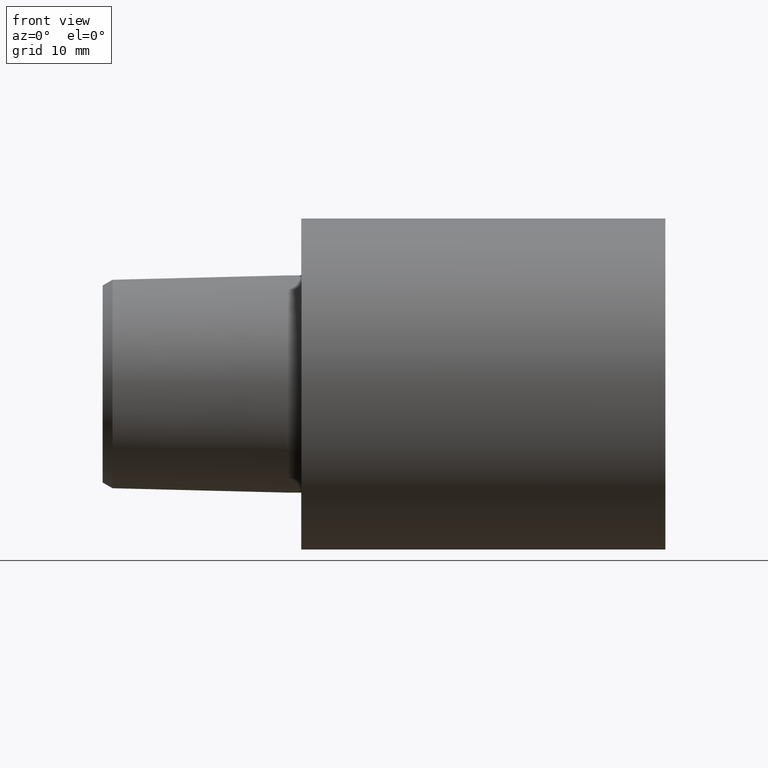
[diagram: clean part render]
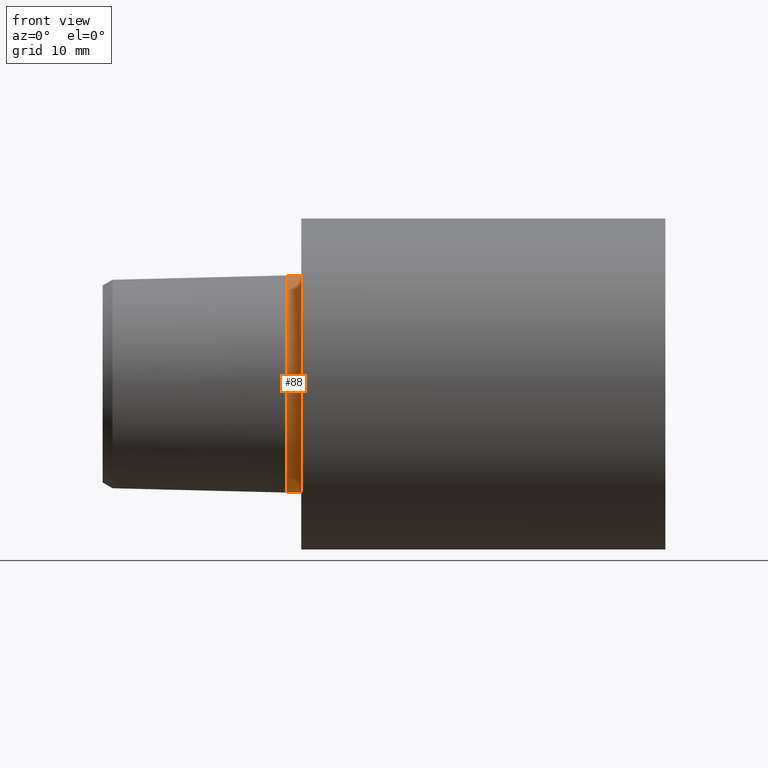
[diagram: same view with one face highlighted and labeled with its STEP entity id]
A machine part, front view. The second image highlights one B-rep face of the part: STEP entity #88.
In plain terms, the highlighted cylindrical surface (partial cylindrical patch) has radius 16.4 mm, axis along (1, 0, 0).
Its self-contained STEP definition (entity closure, byte-faithful):
#14 = VECTOR ( 'NONE', #110, 1000.000000000000000 ) ;
#19 = DIRECTION ( 'NONE',  ( 0.000000000000000000, 0.000000000000000000, -1.000000000000000000 ) ) ;
#29 = CYLINDRICAL_SURFACE ( 'NONE', #262, 16.40000330327199762 ) ;
#39 = VECTOR ( 'NONE', #252, 1000.000000000000000 ) ;
#45 = ORIENTED_EDGE ( 'NONE', *, *, #201, .F. ) ;
#46 = DIRECTION ( 'NONE',  ( 1.000000000000000000, 0.000000000000000000, 0.000000000000000000 ) ) ;
#57 = VERTEX_POINT ( 'NONE', #151 ) ;
#65 = DIRECTION ( 'NONE',  ( 0.000000000000000000, 0.000000000000000000, -1.000000000000000000 ) ) ;
#70 = CARTESIAN_POINT ( 'NONE',  ( -2.199937517756059613, 0.000000000000000000, -16.40000330327199762 ) ) ;
#88 = ADVANCED_FACE ( 'NONE', ( #186 ), #29, .T. ) ;
#110 = DIRECTION ( 'NONE',  ( 1.000000000000000000, 0.000000000000000000, 0.000000000000000000 ) ) ;
#111 = EDGE_CURVE ( 'NONE', #245, #160, #188, .T. ) ;
#122 = CARTESIAN_POINT ( 'NONE',  ( 0.000000000000000000, 0.000000000000000000, 0.000000000000000000 ) ) ;
#135 = CIRCLE ( 'NONE', #180, 16.40000330327199762 ) ;
#141 = CARTESIAN_POINT ( 'NONE',  ( 0.000000000000000000, 0.000000000000000000, -16.40000330327199762 ) ) ;
#144 = ORIENTED_EDGE ( 'NONE', *, *, #163, .T. ) ;
#146 = CARTESIAN_POINT ( 'NONE',  ( -2.199937517756059613, 0.000000000000000000, 0.000000000000000000 ) ) ;
#151 = CARTESIAN_POINT ( 'NONE',  ( 0.000000000000000000, 2.008421155135807723E-15, 16.40000330327199762 ) ) ;
#160 = VERTEX_POINT ( 'NONE', #141 ) ;
#163 = EDGE_CURVE ( 'NONE', #210, #245, #335, .T. ) ;
#177 = DIRECTION ( 'NONE',  ( 1.000000000000000000, 0.000000000000000000, 0.000000000000000000 ) ) ;
#180 = AXIS2_PLACEMENT_3D ( 'NONE', #122, #46, #65 ) ;
#181 = ORIENTED_EDGE ( 'NONE', *, *, #111, .T. ) ;
#184 = EDGE_LOOP ( 'NONE', ( #45, #144, #181, #347 ) ) ;
#186 = FACE_OUTER_BOUND ( 'NONE', #184, .T. ) ;
#188 = LINE ( 'NONE', #274, #14 ) ;
#195 = LINE ( 'NONE', #255, #39 ) ;
#201 = EDGE_CURVE ( 'NONE', #210, #57, #195, .T. ) ;
#210 = VERTEX_POINT ( 'NONE', #288 ) ;
#212 = DIRECTION ( 'NONE',  ( 1.000000000000000000, 0.000000000000000000, 0.000000000000000000 ) ) ;
#217 = AXIS2_PLACEMENT_3D ( 'NONE', #146, #177, #19 ) ;
#218 = EDGE_CURVE ( 'NONE', #57, #160, #135, .T. ) ;
#243 = CARTESIAN_POINT ( 'NONE',  ( 54.99999994390000069, 0.000000000000000000, 0.000000000000000000 ) ) ;
#245 = VERTEX_POINT ( 'NONE', #70 ) ;
#252 = DIRECTION ( 'NONE',  ( 1.000000000000000000, 0.000000000000000000, 0.000000000000000000 ) ) ;
#255 = CARTESIAN_POINT ( 'NONE',  ( 54.99999994390000069, 2.008421155135807723E-15, 16.40000330327199762 ) ) ;
#262 = AXIS2_PLACEMENT_3D ( 'NONE', #243, #212, #327 ) ;
#274 = CARTESIAN_POINT ( 'NONE',  ( 54.99999994390000069, 0.000000000000000000, -16.40000330327199762 ) ) ;
#288 = CARTESIAN_POINT ( 'NONE',  ( -2.199937517756059613, 2.008421155135807723E-15, 16.40000330327199762 ) ) ;
#327 = DIRECTION ( 'NONE',  ( 0.000000000000000000, 0.000000000000000000, -1.000000000000000000 ) ) ;
#335 = CIRCLE ( 'NONE', #217, 16.40000330327199762 ) ;
#347 = ORIENTED_EDGE ( 'NONE', *, *, #218, .F. ) ;